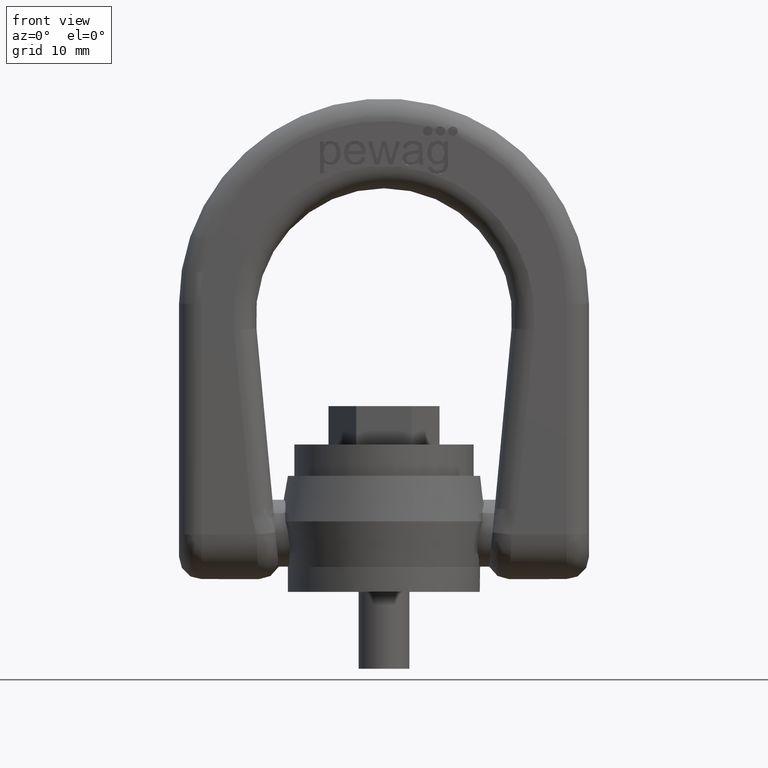
[diagram: clean part render]
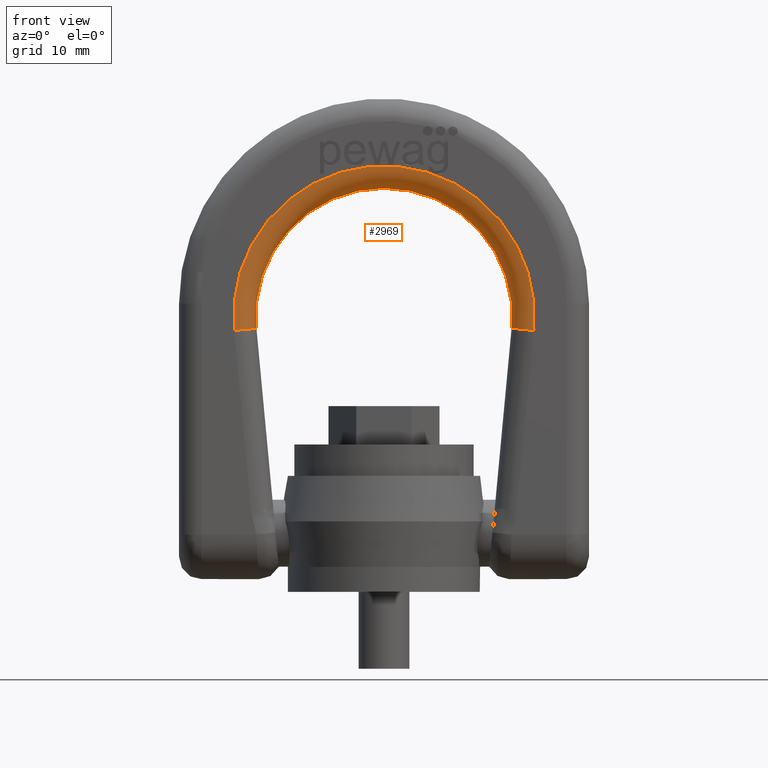
[diagram: same view with one face highlighted and labeled with its STEP entity id]
A machine part, front view. The second image highlights one B-rep face of the part: STEP entity #2969.
In plain terms, the highlighted toroidal blend (fillet) surface has major radius 23.5 mm and minor (blend) radius 3.5 mm.
Its self-contained STEP definition (entity closure, byte-faithful):
#211=TOROIDAL_SURFACE('',#5808,23.5,3.5);
#2615=FACE_OUTER_BOUND('',#3325,.T.);
#2969=ADVANCED_FACE('',(#2615),#211,.T.);
#3325=EDGE_LOOP('',(#4501,#4502,#4503,#4504));
#4501=ORIENTED_EDGE('',*,*,#5545,.T.);
#4502=ORIENTED_EDGE('',*,*,#5093,.F.);
#4503=ORIENTED_EDGE('',*,*,#5546,.T.);
#4504=ORIENTED_EDGE('',*,*,#5043,.F.);
#4628=VERTEX_POINT('',#6944);
#4629=VERTEX_POINT('',#6946);
#4674=VERTEX_POINT('',#7084);
#4676=VERTEX_POINT('',#7090);
#5043=EDGE_CURVE('',#4628,#4629,#5567,.T.);
#5093=EDGE_CURVE('',#4676,#4674,#5577,.T.);
#5545=EDGE_CURVE('',#4628,#4674,#5603,.T.);
#5546=EDGE_CURVE('',#4676,#4629,#5604,.T.);
#5567=CIRCLE('',#5651,23.5);
#5577=CIRCLE('',#5665,20.);
#5603=CIRCLE('',#5806,3.5);
#5604=CIRCLE('',#5807,3.5);
#5651=AXIS2_PLACEMENT_3D('',#6945,#5951,#5952);
#5665=AXIS2_PLACEMENT_3D('',#7091,#6007,#6008);
#5806=AXIS2_PLACEMENT_3D('',#9555,#6578,#6579);
#5807=AXIS2_PLACEMENT_3D('',#9556,#6580,#6581);
#5808=AXIS2_PLACEMENT_3D('',#9557,#6582,#6583);
#5951=DIRECTION('',(0.,1.,0.));
#5952=DIRECTION('',(0.,0.,1.));
#6007=DIRECTION('',(0.,-1.,0.));
#6008=DIRECTION('',(0.,0.,1.));
#6578=DIRECTION('',(-0.0930218178345944,1.84419578486524E-16,0.995664070561325));
#6579=DIRECTION('',(-0.995664070561326,0.,-0.0930218178345944));
#6580=DIRECTION('',(0.0930218178345943,0.,0.995664070561325));
#6581=DIRECTION('',(-0.995664070561326,0.,0.0930218178345944));
#6582=DIRECTION('',(0.,1.,0.));
#6583=DIRECTION('',(0.,0.,1.));
#6944=CARTESIAN_POINT('',(-23.3981056581912,-7.,40.813987280887));
#6945=CARTESIAN_POINT('',(0.,-7.,43.));
#6946=CARTESIAN_POINT('',(23.3981056581912,-7.,40.813987280887));
#7084=CARTESIAN_POINT('',(-19.9132814112265,-3.5,41.1395636433081));
#7090=CARTESIAN_POINT('',(19.9132814112265,-3.5,41.1395636433081));
#7091=CARTESIAN_POINT('',(0.,-3.5,43.));
#9555=CARTESIAN_POINT('',(-23.3981056581912,-3.5,40.813987280887));
#9556=CARTESIAN_POINT('',(23.3981056581912,-3.5,40.813987280887));
#9557=CARTESIAN_POINT('',(0.,-3.5,43.));